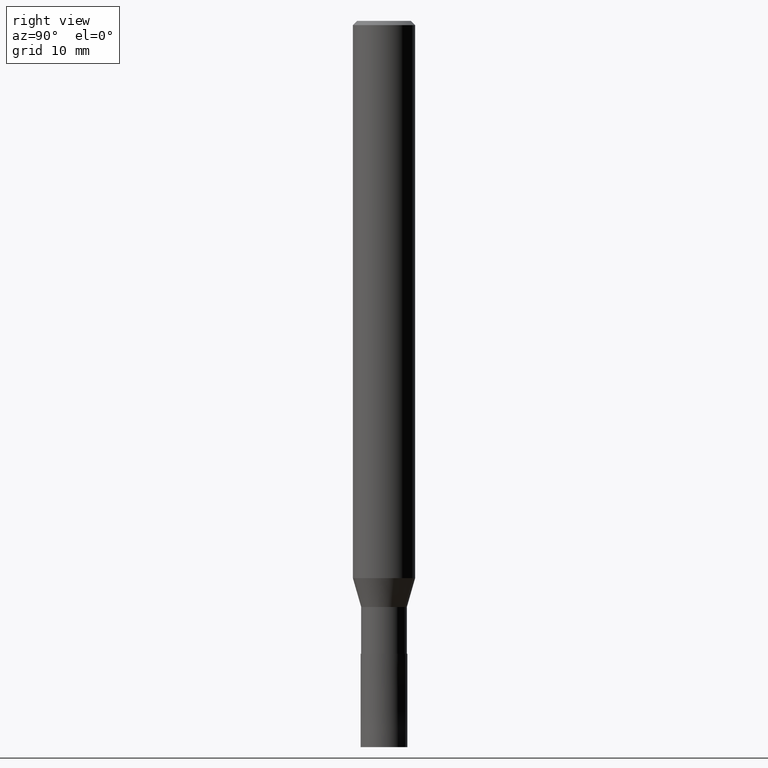
[diagram: clean part render]
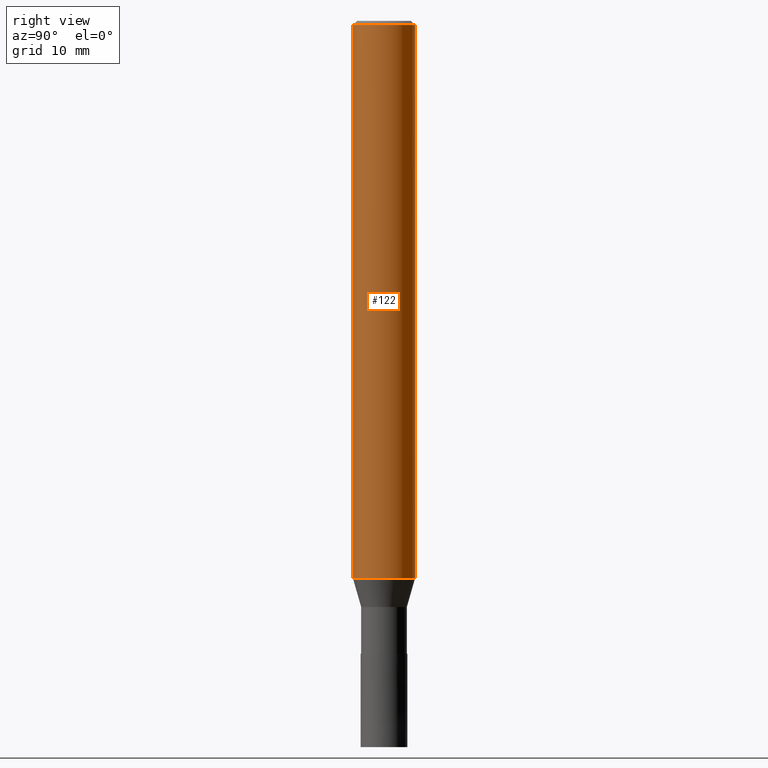
[diagram: same view with one face highlighted and labeled with its STEP entity id]
A machine part, right view. The second image highlights one B-rep face of the part: STEP entity #122.
In plain terms, the highlighted cylindrical surface (edge-blend (fillet) strip) has radius 3 mm, axis along (-0, -0, 1).
Its self-contained STEP definition (entity closure, byte-faithful):
#94=EDGE_CURVE('',#114,#116,#231,.T.);
#100=EDGE_CURVE('',#114,#132,#237,.T.);
#114=VERTEX_POINT('',#252);
#116=VERTEX_POINT('',#254);
#122=ADVANCED_FACE('',(#260),#261,.T.);
#132=VERTEX_POINT('',#272);
#180=VERTEX_POINT('',#327);
#190=EDGE_CURVE('',#180,#116,#341,.T.);
#208=EDGE_CURVE('',#132,#180,#361,.T.);
#231=CIRCLE('',#377,3.0);
#237=LINE('',#384,#385);
#252=CARTESIAN_POINT('',(0.0,3.0,-0.399999999999999));
#254=CARTESIAN_POINT('',(3.67381906146713E-016,-3.0,-0.399999999999999));
#260=FACE_OUTER_BOUND('',#416,.T.);
#261=CYLINDRICAL_SURFACE('',#417,3.0);
#272=CARTESIAN_POINT('',(0.0,3.0,-53.71));
#327=CARTESIAN_POINT('',(3.67381906146713E-016,-3.0,-53.71));
#341=LINE('',#518,#519);
#361=CIRCLE('',#540,3.0);
#377=AXIS2_PLACEMENT_3D('',#542,#543,#544);
#384=CARTESIAN_POINT('',(-3.67381906146713E-016,3.0,-27.055));
#385=VECTOR('',#549,1.0);
#416=EDGE_LOOP('',(#571,#572,#573,#574));
#417=AXIS2_PLACEMENT_3D('',#575,#576,#577);
#518=CARTESIAN_POINT('',(3.67381906146713E-016,-3.0,-27.055));
#519=VECTOR('',#690,1.0);
#540=AXIS2_PLACEMENT_3D('',#711,#712,#713);
#542=CARTESIAN_POINT('',(0.0,0.0,-0.399999999999999));
#543=DIRECTION('',(0.0,0.0,-1.0));
#544=DIRECTION('',(0.0,1.0,0.0));
#549=DIRECTION('',(0.0,0.0,-1.0));
#571=ORIENTED_EDGE('',*,*,#100,.F.);
#572=ORIENTED_EDGE('',*,*,#94,.T.);
#573=ORIENTED_EDGE('',*,*,#190,.F.);
#574=ORIENTED_EDGE('',*,*,#208,.F.);
#575=CARTESIAN_POINT('',(0.0,0.0,-27.055));
#576=DIRECTION('',(-0.0,-0.0,1.0));
#577=DIRECTION('',(0.0,1.0,0.0));
#690=DIRECTION('',(-0.0,-0.0,1.0));
#711=CARTESIAN_POINT('',(0.0,0.0,-53.71));
#712=DIRECTION('',(0.0,0.0,-1.0));
#713=DIRECTION('',(0.0,1.0,0.0));